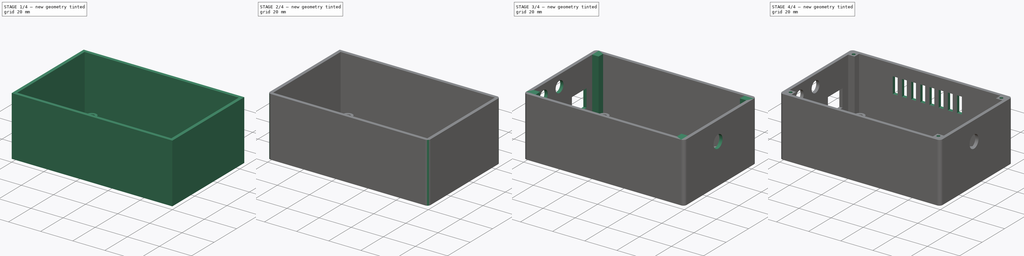
[diagram: build sequence overview — one tinted view per stage of 4, left to right]
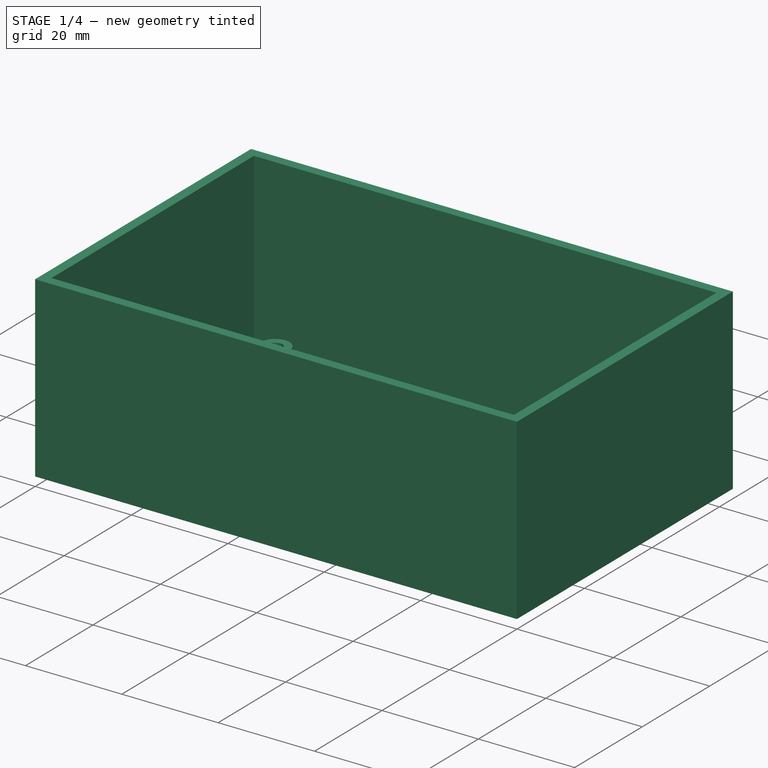
[diagram: stage 1 of 4 — iso view after this stage's code; geometry added in this stage tinted green]
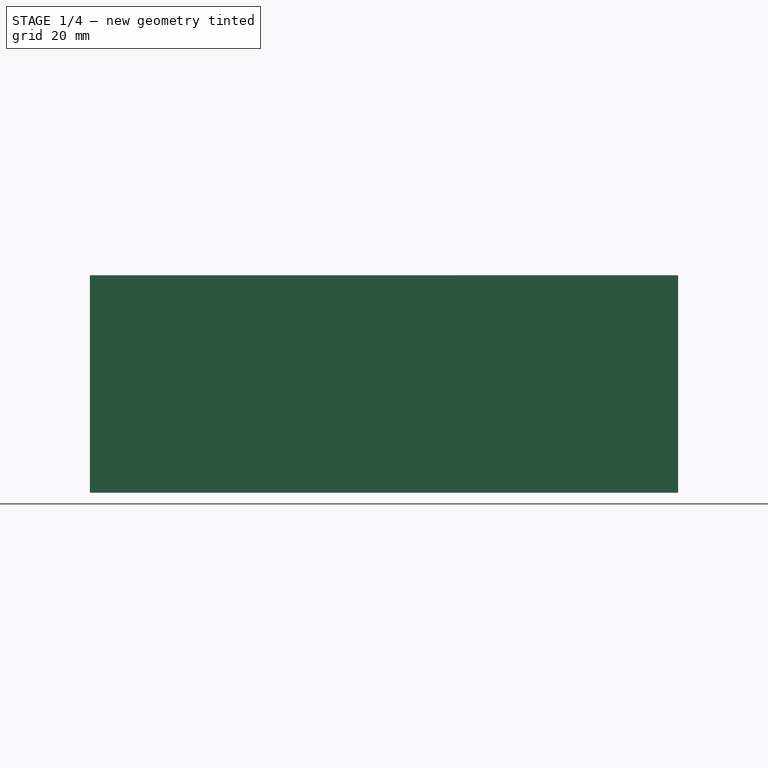
[diagram: stage 1 of 4 — front view after this stage's code; geometry added in this stage tinted green]
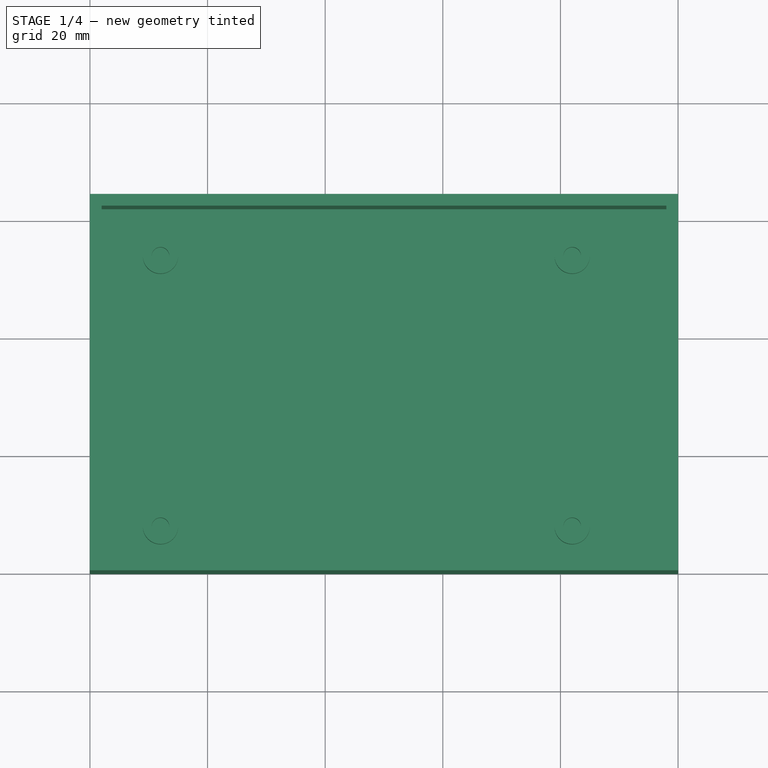
[diagram: stage 1 of 4 — top view after this stage's code; geometry added in this stage tinted green]
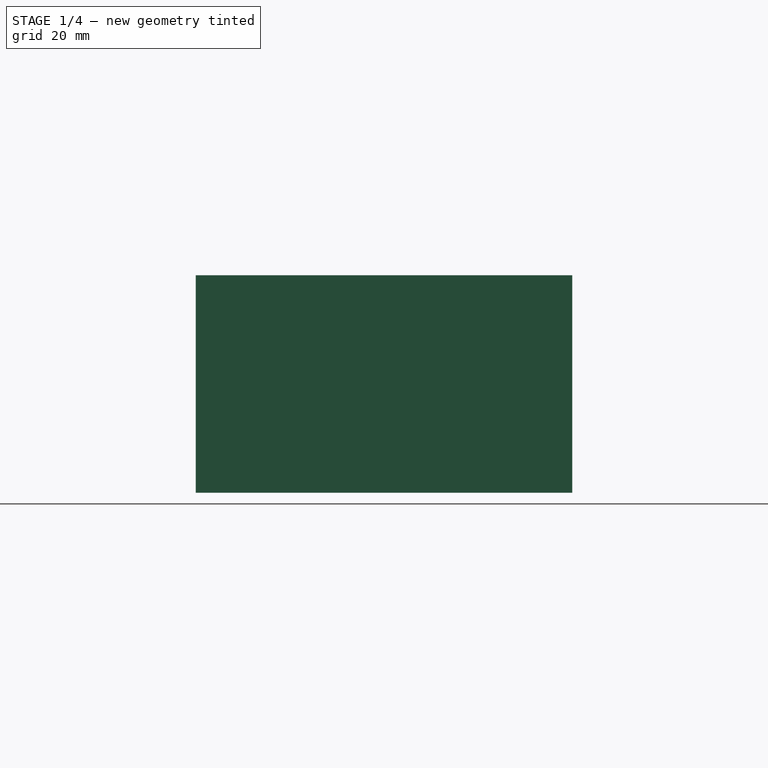
[diagram: stage 1 of 4 — right view after this stage's code; geometry added in this stage tinted green]
FCSTD DOCUMENT  (FreeCAD 0.16R6706 (Git))
Label: iROB-EA_Caja_Adaptador_DEBUG
License: All rights reserved
LicenseURL: http://en.wikipedia.org/wiki/All_rights_reserved
objects: Sketcher::SketchObject×8, PartDesign::Pad×4, PartDesign::Fillet×4, PartDesign::Pocket×4, PartDesign::LinearPattern×1
note: 29 computed .brp shape members not serialized (recipe doc carries the construction recipe); baked Part::Feature solids carry a one-line shape summary decoded from their .brp

FEATURE [Sketcher::SketchObject] Sketch  label="Base"
  sketch-geometry (4):
    g0: LineSegment StartX=0 StartY=64 StartZ=0 EndX=100 EndY=64 EndZ=0
    g1: LineSegment StartX=100 StartY=64 StartZ=0 EndX=100 EndY=0 EndZ=0
    g2: LineSegment StartX=100 StartY=0 StartZ=0 EndX=0 EndY=0 EndZ=0
    g3: LineSegment StartX=0 StartY=0 StartZ=0 EndX=0 EndY=64 EndZ=0
  constraints (11):
    c: Coincident(g0,g1)
    c: Coincident(g1,g2)
    c: Coincident(g2,g3)
    c: Coincident(g3,g0)
    c: Horizontal(g0)
    c: Horizontal(g2)
    c: Vertical(g1)
    c: Vertical(g3)
    c: Coincident(g-1,g2)
    c: DistanceX(g2,g2) = 100
    c: DistanceY(g3,g3) = 64
FEATURE [PartDesign::Pad] Pad
  Length = 2
  Length2 = 100
  Sketch = -> Sketch
  Type = 0
FEATURE [Sketcher::SketchObject] Sketch001  label="Cuerpo"
  Placement = pos=(0,0,2) rot=(0,0,1;0rad)
  Support = -> Pad [Face6]
  sketch-geometry (8):
    g0: LineSegment StartX=2 StartY=62 StartZ=0 EndX=98 EndY=62 EndZ=0
    g1: LineSegment StartX=98 StartY=62 StartZ=0 EndX=98 EndY=2 EndZ=0
    g2: LineSegment StartX=98 StartY=2 StartZ=0 EndX=2 EndY=2 EndZ=0
    g3: LineSegment StartX=2 StartY=2 StartZ=0 EndX=2 EndY=62 EndZ=0
    g4: LineSegment StartX=0 StartY=64 StartZ=0 EndX=100 EndY=64 EndZ=0
    g5: LineSegment StartX=100 StartY=64 StartZ=0 EndX=100 EndY=0 EndZ=0
    g6: LineSegment StartX=100 StartY=0 StartZ=0 EndX=0 EndY=0 EndZ=0
    g7: LineSegment StartX=0 StartY=0 StartZ=0 EndX=0 EndY=64 EndZ=0
  constraints (23):
    c: Coincident(g0,g1)
    c: Coincident(g1,g2)
    c: Coincident(g2,g3)
    c: Coincident(g3,g0)
    c: Horizontal(g0)
    c: Horizontal(g2)
    c: Vertical(g1)
    c: Vertical(g3)
    c: DistanceX(g2,g2) = 96
    c: DistanceY(g3,g3) = 60
    c: Coincident(g4,g5)
    c: Coincident(g5,g6)
    c: Coincident(g6,g7)
    c: Coincident(g7,g4)
    c: Horizontal(g4)
    c: Horizontal(g6)
    c: Vertical(g5)
    c: Vertical(g7)
    c: DistanceX(g6,g6) = 100
    c: DistanceY(g7,g7) = 64
    c: DistanceX(g6,g2) = 2
    c: DistanceY(g6,g2) = 2
    c: Coincident(g6,g-1)
FEATURE [PartDesign::Pad] Pad001
  Length = 35
  Length2 = 100
  Sketch = -> Sketch001
  Type = 0
FEATURE [Sketcher::SketchObject] Sketch002  label="Soportes_Circuito"
  Placement = pos=(0,0,2) rot=(0,0,1;0rad)
  Support = -> Pad001 [Face6]
  sketch-geometry (8):
    g0: Circle CenterX=82 CenterY=54 CenterZ=0 NormalX=0 NormalY=0 NormalZ=1 Radius=1.5
    g1: Circle CenterX=82 CenterY=54 CenterZ=0 NormalX=0 NormalY=0 NormalZ=1 Radius=3
    g2: Circle CenterX=12 CenterY=54 CenterZ=0 NormalX=0 NormalY=0 NormalZ=1 Radius=1.5
    g3: Circle CenterX=12 CenterY=54 CenterZ=0 NormalX=0 NormalY=0 NormalZ=1 Radius=3
    g4: Circle CenterX=12 CenterY=8 CenterZ=0 NormalX=0 NormalY=0 NormalZ=1 Radius=1.5
    g5: Circle CenterX=12 CenterY=8 CenterZ=0 NormalX=0 NormalY=0 NormalZ=1 Radius=3
    g6: Circle CenterX=82 CenterY=8 CenterZ=0 NormalX=0 NormalY=0 NormalZ=1 Radius=1.5
    g7: Circle CenterX=82 CenterY=8 CenterZ=0 NormalX=0 NormalY=0 NormalZ=1 Radius=3
  constraints (20):
    c: Radius(g0) = 1.5
    c: Radius(g1) = 3
    c: Coincident(g0,g1)
    c: Radius(g2) = 1.5
    c: Radius(g3) = 3
    c: Coincident(g3,g2)
    c: Radius(g4) = 1.5
    c: Radius(g5) = 3
    c: Coincident(g5,g4)
    c: Radius(g6) = 1.5
    c: Radius(g7) = 3
    c: Coincident(g7,g6)
    c: DistanceX(g2,g0) = 70
    c: DistanceY(g0,g2) = 0
    c: DistanceY(g4,g2) = 46
    c: DistanceX(g2,g4) = 0
    c: DistanceY(g6,g4) = 0
    c: DistanceX(g6,g0) = 0
    c: DistanceX(g-1,g4) = 12
    c: DistanceY(g-1,g4) = 8
FEATURE [PartDesign::Pad] Pad002
  Length = 5
  Length2 = 100
  Sketch = -> Sketch002
  Type = 0
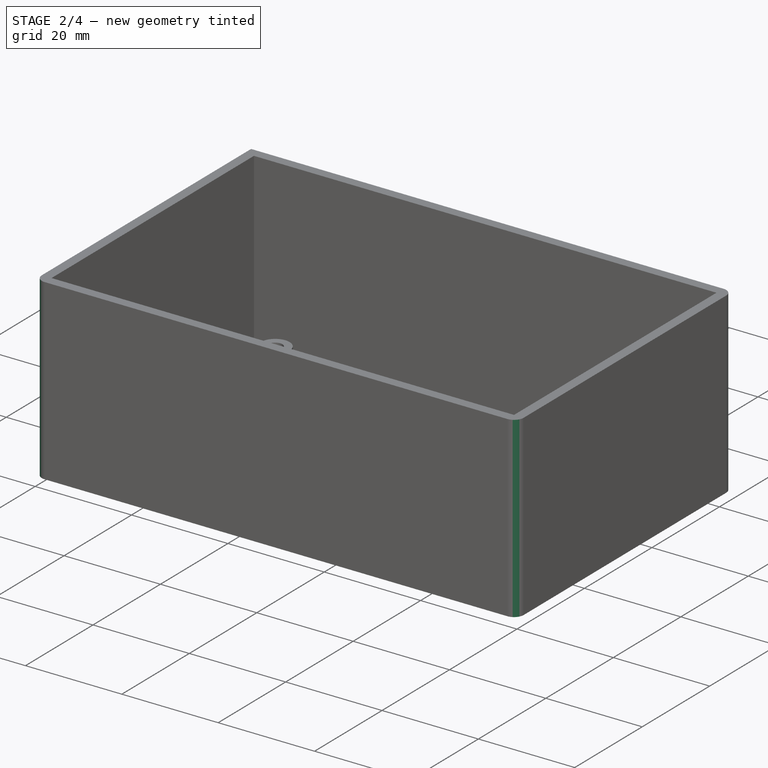
[diagram: stage 2 of 4 — iso view after this stage's code; geometry added in this stage tinted green]
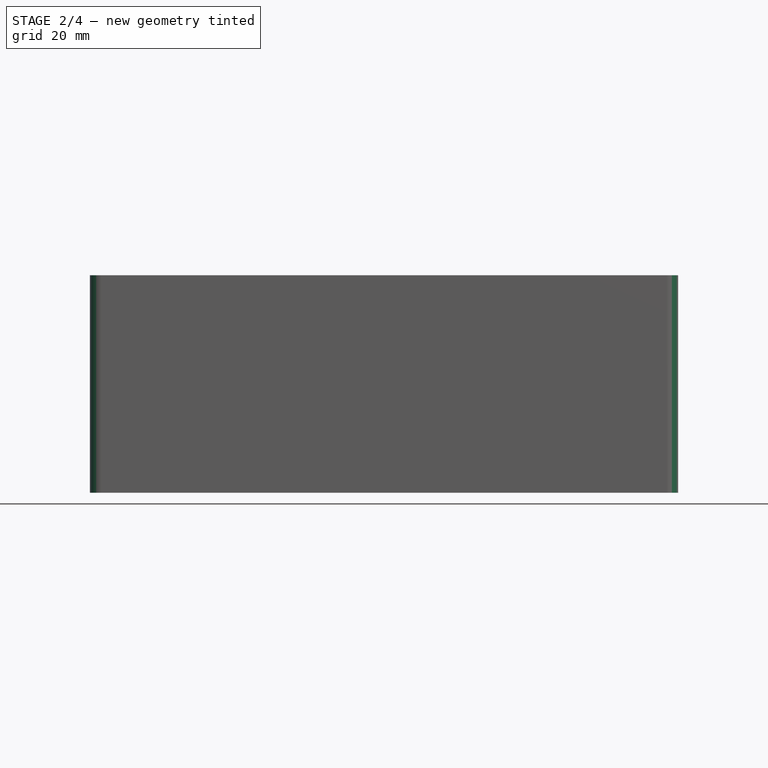
[diagram: stage 2 of 4 — front view after this stage's code; geometry added in this stage tinted green]
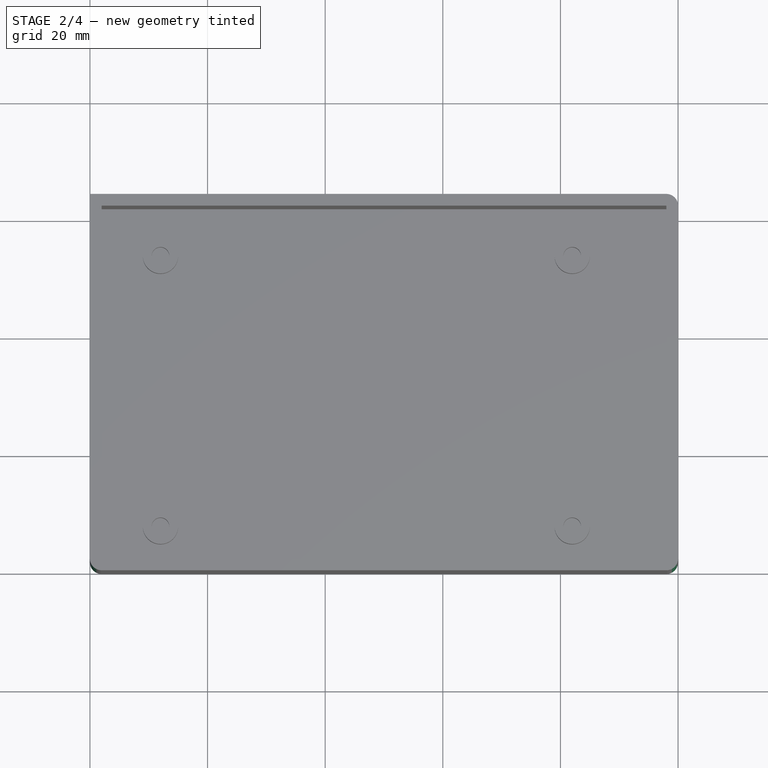
[diagram: stage 2 of 4 — top view after this stage's code; geometry added in this stage tinted green]
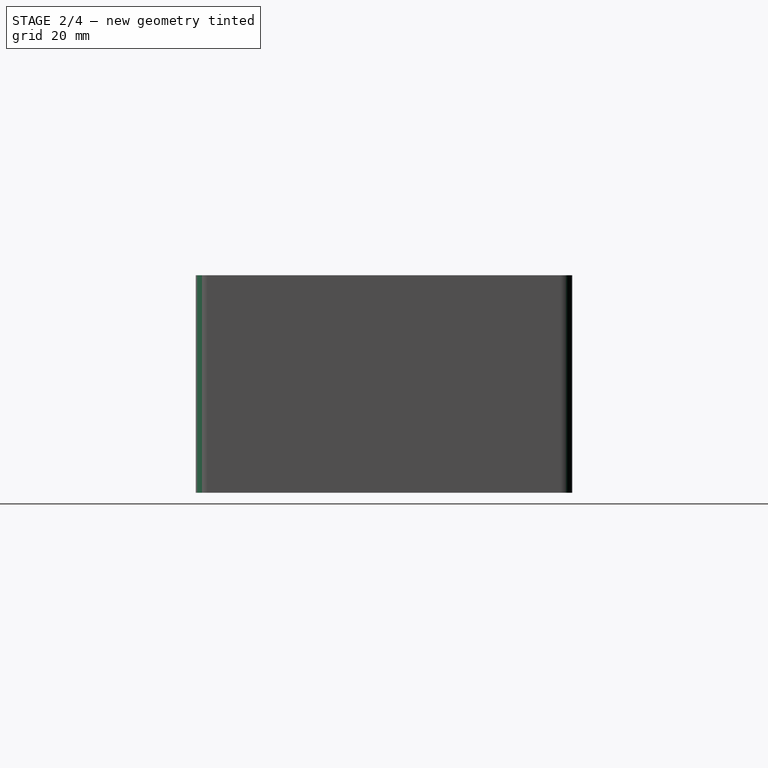
[diagram: stage 2 of 4 — right view after this stage's code; geometry added in this stage tinted green]
FEATURE [PartDesign::Fillet] Fillet
  Base = -> Pad002 [Edge14]
  Radius = 2
FEATURE [PartDesign::Fillet] Fillet001
  Base = -> Fillet [Edge11]
  Radius = 2
FEATURE [PartDesign::Fillet] Fillet002
  Base = -> Fillet001 [Edge18]
  Radius = 2
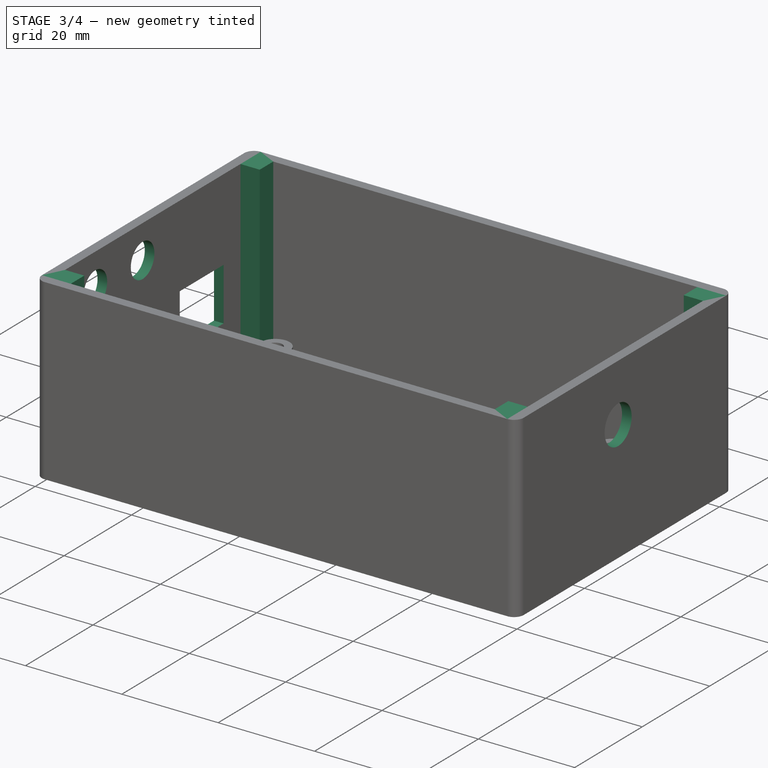
[diagram: stage 3 of 4 — iso view after this stage's code; geometry added in this stage tinted green]
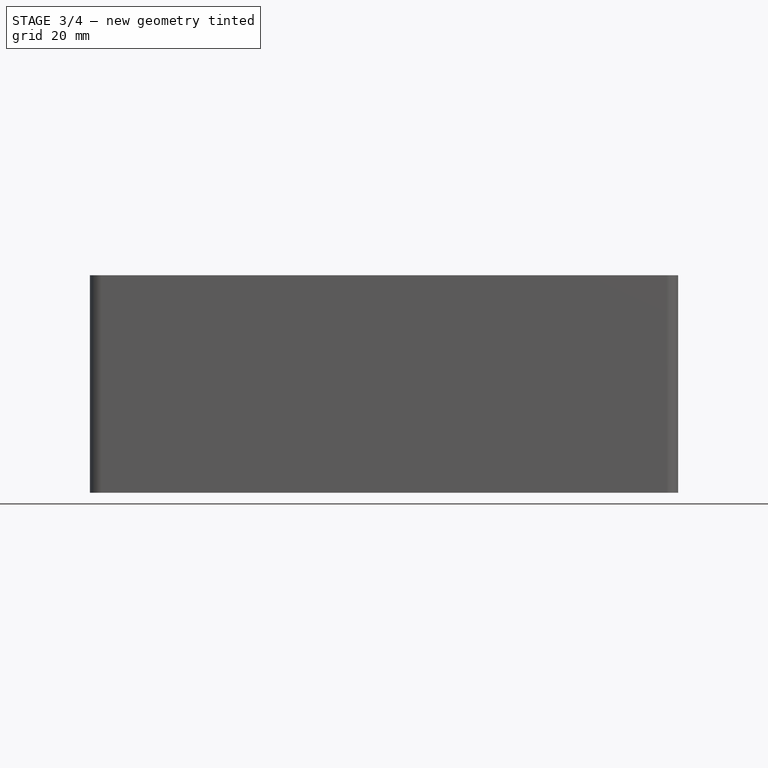
[diagram: stage 3 of 4 — front view after this stage's code; geometry added in this stage tinted green]
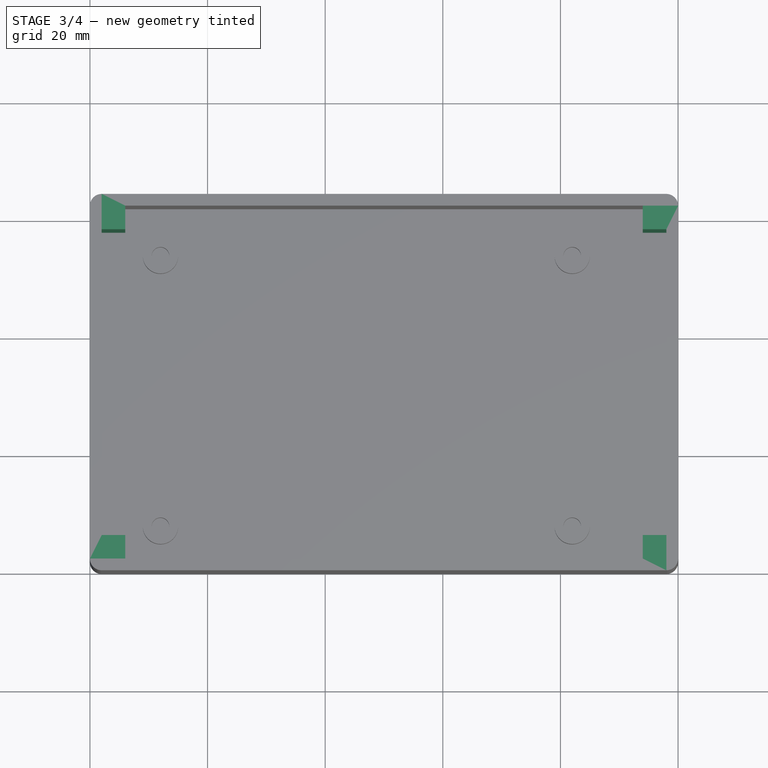
[diagram: stage 3 of 4 — top view after this stage's code; geometry added in this stage tinted green]
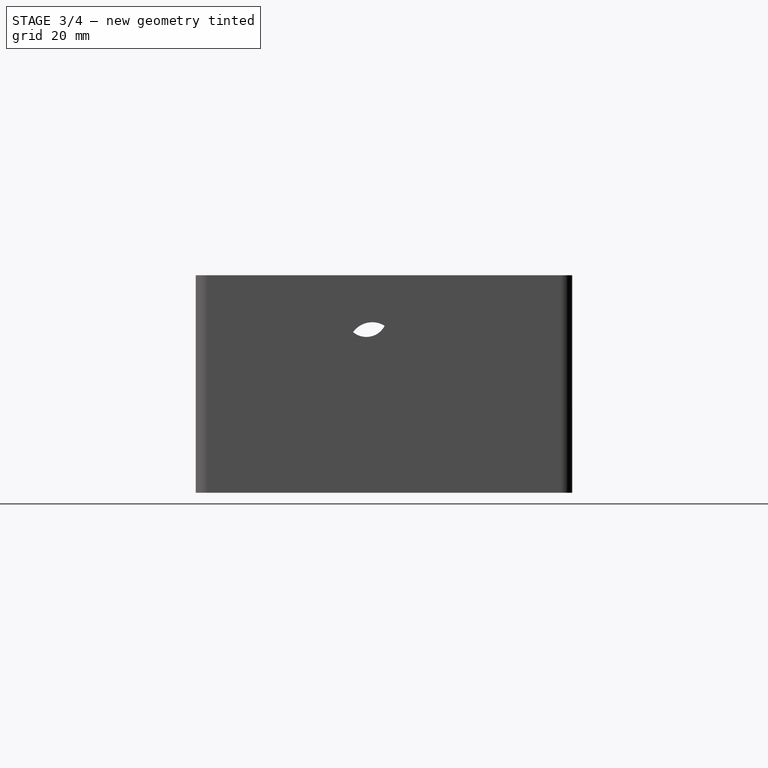
[diagram: stage 3 of 4 — right view after this stage's code; geometry added in this stage tinted green]
FEATURE [PartDesign::Fillet] Fillet003
  Base = -> Fillet002 [Edge19]
  Radius = 2
FEATURE [Sketcher::SketchObject] Sketch003  label="Entrada_Cable_DEBUG"
  Placement = pos=(100,0,0) rot=(0.57735,0.57735,0.57735;2.0944rad)
  Support = -> Fillet003 [Face6]
  sketch-geometry (1):
    g0: Circle CenterX=30 CenterY=25 CenterZ=0 NormalX=0 NormalY=0 NormalZ=1 Radius=4
  constraints (3):
    c: Radius(g0) = 4
    c: DistanceX(g0,g-1) = -30
    c: DistanceY(g-1,g0) = 25
FEATURE [PartDesign::Pocket] Pocket
  Length = 5
  Sketch = -> Sketch003
  Type = 0
FEATURE [Sketcher::SketchObject] Sketch004  label="Entradas_Interfaces"
  Placement = pos=(0,0,0) rot=(0.57735,-0.57735,-0.57735;2.0944rad)
  Support = -> Pocket [Face5]
  sketch-geometry (12):
    g0: Circle CenterX=-29 CenterY=30 CenterZ=0 NormalX=0 NormalY=0 NormalZ=1 Radius=3.5
    g1: Circle CenterX=-15 CenterY=30 CenterZ=0 NormalX=0 NormalY=0 NormalZ=1 Radius=3.5
    g2: LineSegment StartX=-53 StartY=20 StartZ=0 EndX=-40 EndY=20 EndZ=0
    g3: LineSegment StartX=-40 StartY=20 StartZ=0 EndX=-40 EndY=9 EndZ=0
    g4: LineSegment StartX=-40 StartY=9 StartZ=0 EndX=-53 EndY=9 EndZ=0
    g5: LineSegment StartX=-53 StartY=9 StartZ=0 EndX=-53 EndY=20 EndZ=0
    g6: LineSegment StartX=-32 StartY=20 StartZ=0 EndX=-12 EndY=20 EndZ=0
    g7: LineSegment StartX=-12 StartY=20 StartZ=0 EndX=-12 EndY=9 EndZ=0
    g8: LineSegment StartX=-12 StartY=9 StartZ=0 EndX=-32 EndY=9 EndZ=0
    g9: LineSegment StartX=-32 StartY=9 StartZ=0 EndX=-32 EndY=20 EndZ=0
    g10: Circle CenterX=-34 CenterY=15 CenterZ=0 NormalX=0 NormalY=0 NormalZ=1 Radius=1
    g11: Circle CenterX=-10 CenterY=15 CenterZ=0 NormalX=0 NormalY=0 NormalZ=1 Radius=1
  constraints (36):
    c: Radius(g0) = 3.5
    c: Radius(g1) = 3.5
    c: DistanceY(g1,g0) = 0
    c: DistanceX(g0,g1) = 14
    c: DistanceY(g-1,g1) = 30
    c: DistanceX(g1,g-1) = 15
    c: Coincident(g2,g3)
    c: Coincident(g3,g4)
    c: Coincident(g4,g5)
    c: Coincident(g5,g2)
    c: Horizontal(g2)
    c: Horizontal(g4)
    c: Vertical(g3)
    c: Vertical(g5)
    c: DistanceX(g2,g2) = 13
    c: DistanceY(g3,g3) = 11
    c: DistanceY(g-1,g3) = 9
    c: DistanceX(g3,g-1) = 40
    c: Coincident(g6,g7)
    c: Coincident(g7,g8)
    c: Coincident(g8,g9)
    c: Coincident(g9,g6)
    c: Horizontal(g6)
    c: Horizontal(g8)
    c: Vertical(g7)
    c: Vertical(g9)
    c: DistanceX(g6,g6) = 20
    c: DistanceY(g7,g7) = 11
    c: Radius(g10) = 1
    c: Radius(g11) = 1
    c: DistanceY(g8,g11) = 6
    c: DistanceY(g11,g10) = 0
    c: DistanceX(g10,g11) = 24
    c: DistanceX(g10,g8) = 2
    c: DistanceY(g-1,g8) = 9
    c: DistanceX(g3,g8) = 8
FEATURE [PartDesign::Pocket] Pocket001
  Length = 5
  Sketch = -> Sketch004
  Type = 0
FEATURE [Sketcher::SketchObject] Sketch005  label="Soportes_Tornillos_Tapa"
  Placement = pos=(0,0,2) rot=(0,0,1;0rad)
  Support = -> Pocket001 [Face28]
  sketch-geometry (16):
    g0: LineSegment StartX=2 StartY=6 StartZ=0 EndX=6 EndY=6 EndZ=0
    g1: LineSegment StartX=6 StartY=6 StartZ=0 EndX=6 EndY=2 EndZ=0
    g2: LineSegment StartX=6 StartY=2 StartZ=0 EndX=2 EndY=2 EndZ=0
    g3: LineSegment StartX=2 StartY=2 StartZ=0 EndX=2 EndY=6 EndZ=0
    g4: LineSegment StartX=94 StartY=6 StartZ=0 EndX=98 EndY=6 EndZ=0
    g5: LineSegment StartX=98 StartY=6 StartZ=0 EndX=98 EndY=2 EndZ=0
    g6: LineSegment StartX=98 StartY=2 StartZ=0 EndX=94 EndY=2 EndZ=0
    g7: LineSegment StartX=94 StartY=2 StartZ=0 EndX=94 EndY=6 EndZ=0
    g8: LineSegment StartX=2 StartY=62 StartZ=0 EndX=6 EndY=62 EndZ=0
    g9: LineSegment StartX=6 StartY=62 StartZ=0 EndX=6 EndY=58 EndZ=0
    g10: LineSegment StartX=6 StartY=58 StartZ=0 EndX=2 EndY=58 EndZ=0
    g11: LineSegment StartX=2 StartY=58 StartZ=0 EndX=2 EndY=62 EndZ=0
    g12: LineSegment StartX=94 StartY=62 StartZ=0 EndX=98 EndY=62 EndZ=0
    g13: LineSegment StartX=98 StartY=62 StartZ=0 EndX=98 EndY=58 EndZ=0
    g14: LineSegment StartX=98 StartY=58 StartZ=0 EndX=94 EndY=58 EndZ=0
    g15: LineSegment StartX=94 StartY=58 StartZ=0 EndX=94 EndY=62 EndZ=0
  constraints (48):
    c: Coincident(g0,g1)
    c: Coincident(g1,g2)
    c: Coincident(g2,g3)
    c: Coincident(g3,g0)
    c: Horizontal(g0)
    c: Horizontal(g2)
    c: Vertical(g1)
    c: Vertical(g3)
    c: DistanceX(g0,g0) = 4
    c: DistanceY(g3,g3) = 4
    c: Coincident(g4,g5)
    c: Coincident(g5,g6)
    c: Coincident(g6,g7)
    c: Coincident(g7,g4)
    c: Horizontal(g4)
    c: Horizontal(g6)
    c: Vertical(g5)
    c: Vertical(g7)
    c: DistanceX(g4,g4) = 4
    c: DistanceY(g7,g7) = 4
    c: DistanceY(g6,g1) = 0
    c: DistanceX(g1,g6) = 88
    c: Coincident(g8,g9)
    c: Coincident(g9,g10)
    c: Coincident(g10,g11)
    c: Coincident(g11,g8)
    c: Horizontal(g8)
    c: Horizontal(g10)
    c: Vertical(g9)
    c: Vertical(g11)
    c: DistanceX(g8,g8) = 4
    c: DistanceY(g11,g11) = 4
    c: DistanceX(g0,g9) = 0
    c: DistanceY(g0,g9) = 52
    c: Coincident(g12,g13)
    c: Coincident(g13,g14)
    c: Coincident(g14,g15)
    c: Coincident(g15,g12)
    c: Horizontal(g12)
    c: Horizontal(g14)
    c: Vertical(g13)
    c: Vertical(g15)
    c: DistanceX(g12,g12) = 4
    c: DistanceY(g15,g15) = 4
    c: DistanceY(g14,g9) = 0
    c: DistanceX(g14,g4) = 0
    c: DistanceX(g-1,g2) = 2
    c: DistanceY(g-1,g2) = 2
FEATURE [PartDesign::Pad] Pad003
  Length = 35
  Length2 = 100
  Sketch = -> Sketch005
  Type = 0
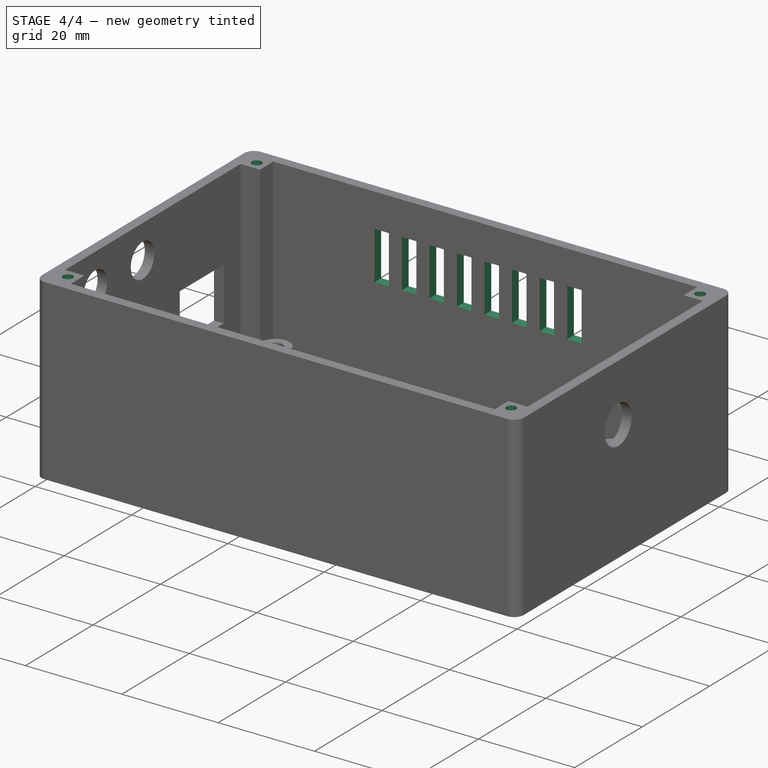
[diagram: stage 4 of 4 — iso view after this stage's code; geometry added in this stage tinted green]
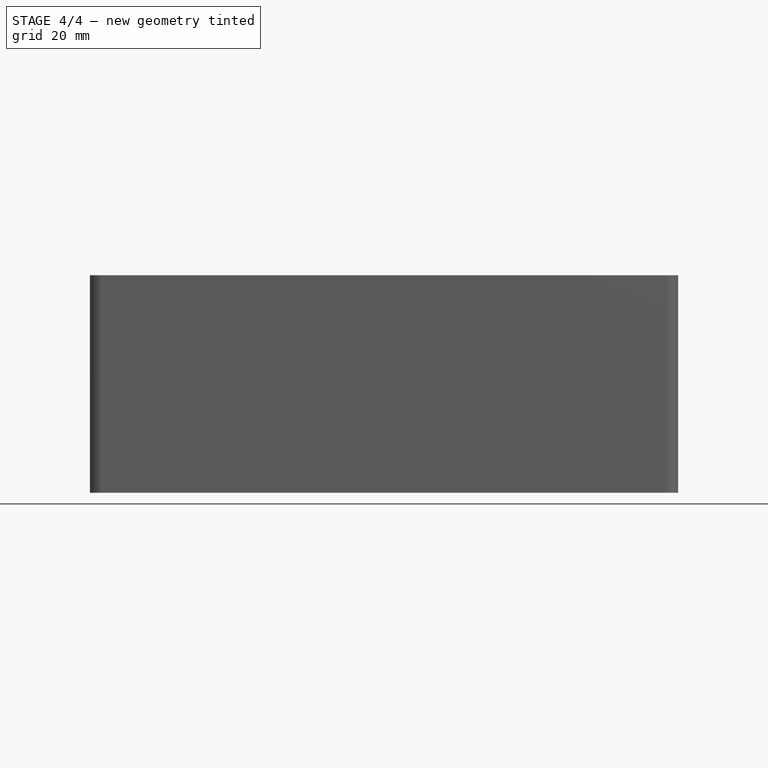
[diagram: stage 4 of 4 — front view after this stage's code; geometry added in this stage tinted green]
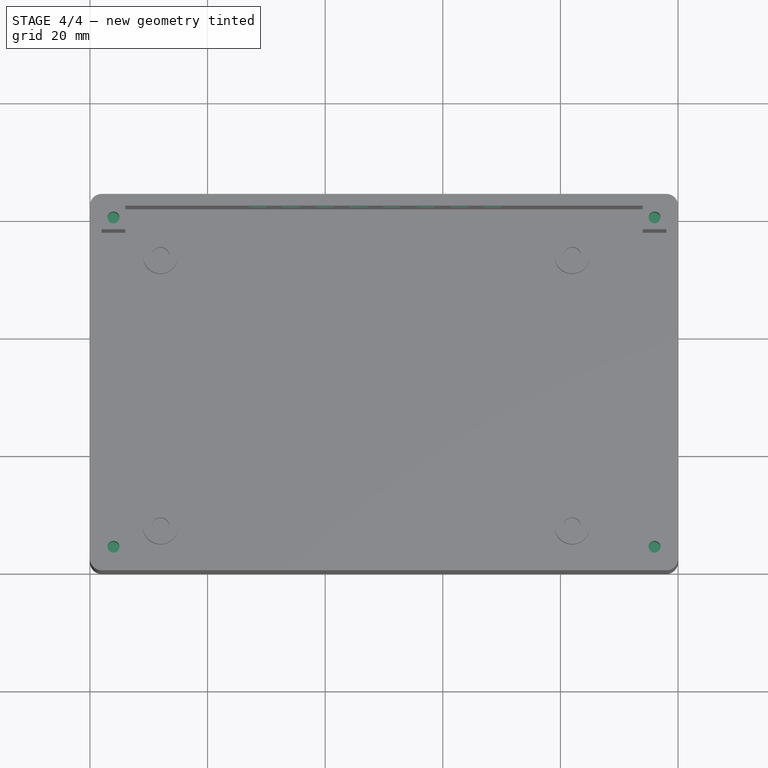
[diagram: stage 4 of 4 — top view after this stage's code; geometry added in this stage tinted green]
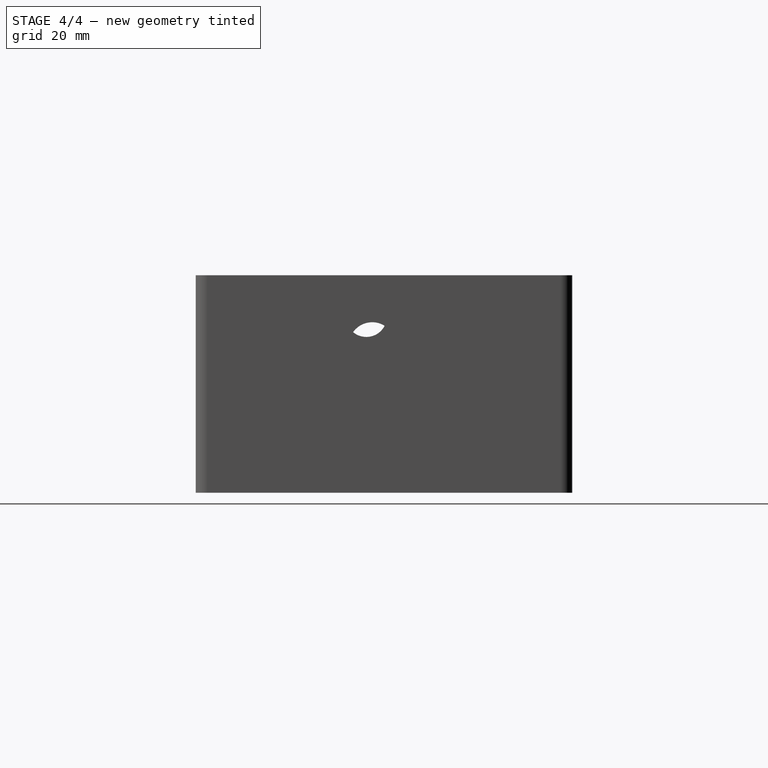
[diagram: stage 4 of 4 — right view after this stage's code; geometry added in this stage tinted green]
FEATURE [Sketcher::SketchObject] Sketch006  label="Agujeros_Tornillos_Tapa"
  Placement = pos=(0,0,37) rot=(0,0,1;0rad)
  Support = -> Pad003 [Face52]
  sketch-geometry (4):
    g0: Circle CenterX=4 CenterY=60 CenterZ=0 NormalX=0 NormalY=0 NormalZ=1 Radius=1
    g1: Circle CenterX=96 CenterY=60 CenterZ=0 NormalX=0 NormalY=0 NormalZ=1 Radius=1
    g2: Circle CenterX=4 CenterY=4 CenterZ=0 NormalX=0 NormalY=0 NormalZ=1 Radius=1
    g3: Circle CenterX=96 CenterY=4 CenterZ=0 NormalX=0 NormalY=0 NormalZ=1 Radius=1
  constraints (12):
    c: Radius(g0) = 1
    c: Radius(g1) = 1
    c: DistanceY(g0,g1) = 0
    c: DistanceX(g0,g1) = 92
    c: Radius(g3) = 1
    c: Radius(g2) = 1
    c: DistanceY(g2,g3) = 0
    c: DistanceX(g2,g0) = 0
    c: DistanceX(g3,g1) = 0
    c: DistanceY(g2,g0) = 56
    c: DistanceX(g-1,g2) = 4
    c: DistanceY(g-1,g2) = 4
FEATURE [PartDesign::Pocket] Pocket002
  Length = 10
  Sketch = -> Sketch006
  Type = 0
FEATURE [Sketcher::SketchObject] Sketch007
  Placement = pos=(0,64,0) rot=(0,0.707107,0.707107;3.14159rad)
  Support = -> Pocket002 [Face19]
  sketch-geometry (4):
    g0: LineSegment StartX=-70 StartY=30 StartZ=0 EndX=-67 EndY=30 EndZ=0
    g1: LineSegment StartX=-67 StartY=30 StartZ=0 EndX=-67 EndY=20 EndZ=0
    g2: LineSegment StartX=-67 StartY=20 StartZ=0 EndX=-70 EndY=20 EndZ=0
    g3: LineSegment StartX=-70 StartY=20 StartZ=0 EndX=-70 EndY=30 EndZ=0
  constraints (12):
    c: Coincident(g0,g1)
    c: Coincident(g1,g2)
    c: Coincident(g2,g3)
    c: Coincident(g3,g0)
    c: Horizontal(g0)
    c: Horizontal(g2)
    c: Vertical(g1)
    c: Vertical(g3)
    c: DistanceX(g0,g0) = 3
    c: DistanceY(g3,g3) = 10
    c: DistanceX(g2,g-1) = 70
    c: DistanceY(g-1,g2) = 20
FEATURE [PartDesign::Pocket] Pocket003
  Length = 5
  Sketch = -> Sketch007
  Type = 0
FEATURE [PartDesign::LinearPattern] LinearPattern
  Direction = -> Sketch007 [H_Axis]
  Length = 40
  Occurrences = 8
  Originals = -> [Pocket003]
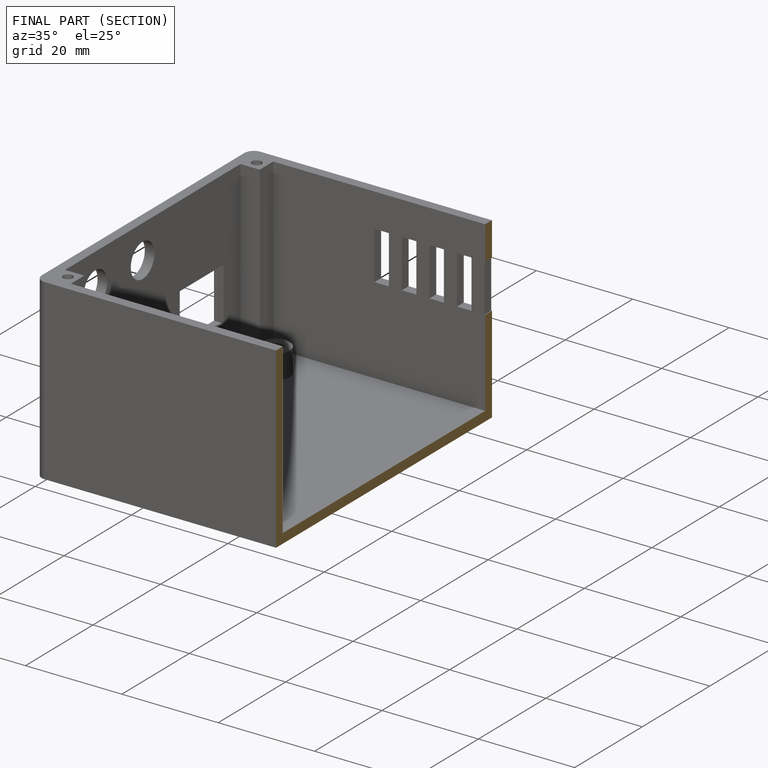
[diagram: finished part — half-section view (interior)]
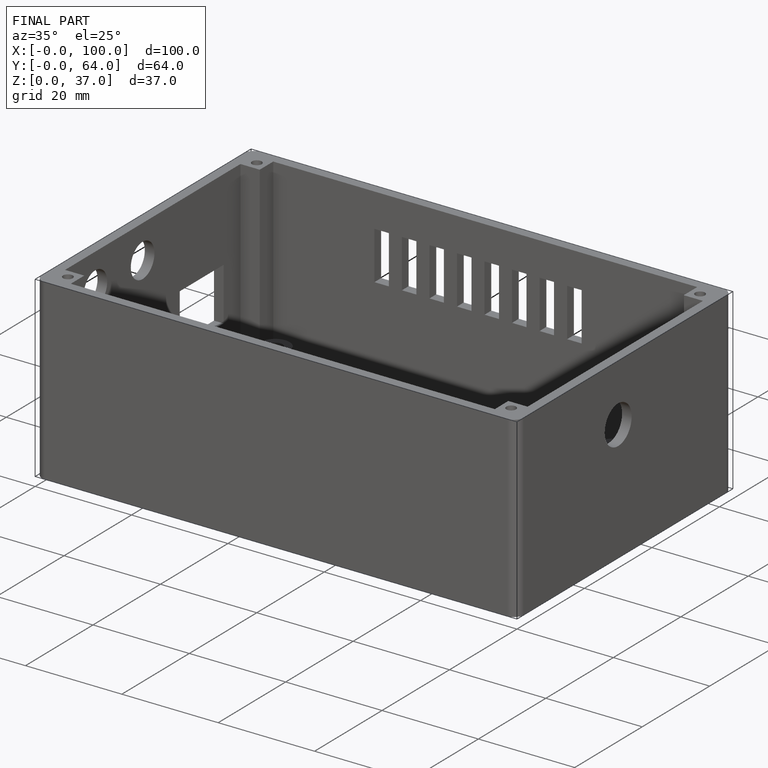
[diagram: finished part — iso view with bounding-box wireframe]
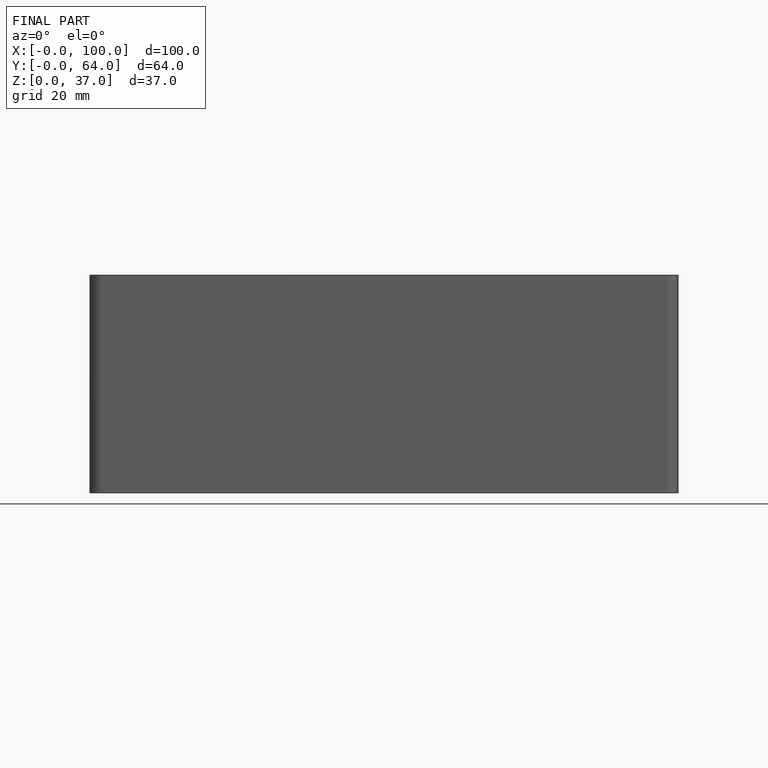
[diagram: finished part — front view with bounding-box wireframe]
